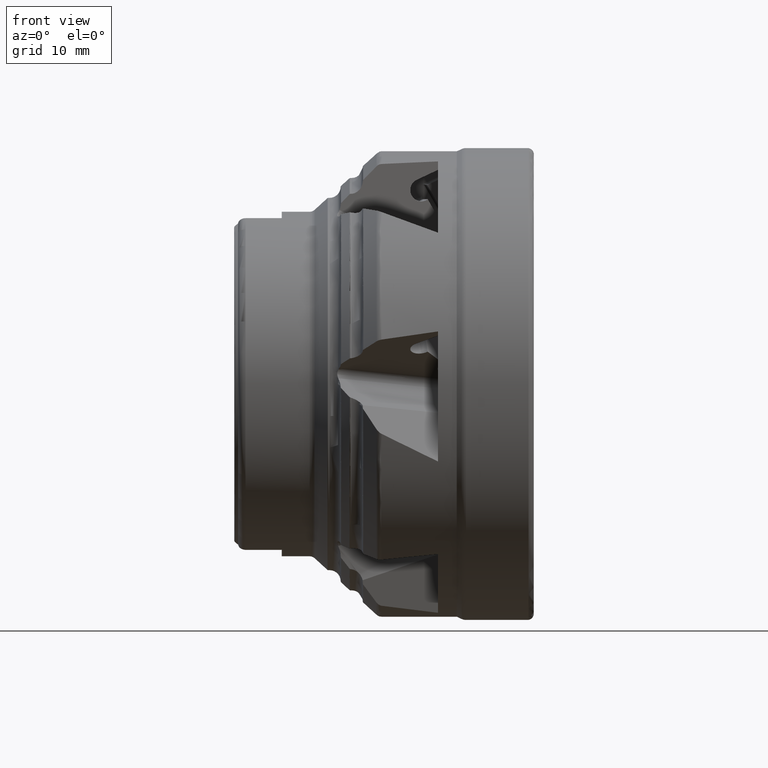
[diagram: clean part render]
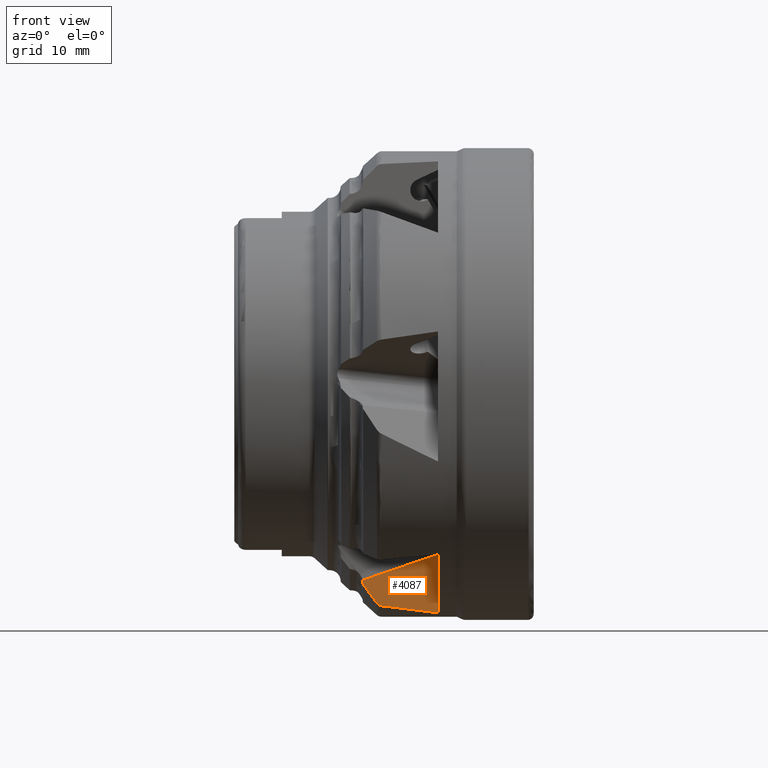
[diagram: same view with one face highlighted and labeled with its STEP entity id]
A machine part, front view. The second image highlights one B-rep face of the part: STEP entity #4087.
In plain terms, the highlighted planar face has unit normal (-0.3841, 0.8611, 0.3332).
Its self-contained STEP definition (entity closure, byte-faithful):
#45 = EDGE_CURVE ( 'NONE', #3265, #1196, #7581, .T. ) ;
#50 = EDGE_CURVE ( 'NONE', #1196, #1234, #7514, .T. ) ;
#51 = EDGE_CURVE ( 'NONE', #1234, #1321, #7553, .T. ) ;
#829 = EDGE_LOOP ( 'NONE', ( #12328, #12531, #12465, #12455, #12423, #12290, #12335 ) ) ;
#1196 = VERTEX_POINT ( 'NONE', #11294 ) ;
#1234 = VERTEX_POINT ( 'NONE', #11332 ) ;
#1321 = VERTEX_POINT ( 'NONE', #11420 ) ;
#1572 = VERTEX_POINT ( 'NONE', #11450 ) ;
#1845 = VERTEX_POINT ( 'NONE', #11509 ) ;
#1951 =( BOUNDED_CURVE ( )  B_SPLINE_CURVE ( 3, ( #4911, #4920, #4921, #4922 ),
 .UNSPECIFIED., .F., .T. ) 
 B_SPLINE_CURVE_WITH_KNOTS ( ( 4, 4 ),
 ( 4.035656156811368700, 4.159239921606158900 ),
 .UNSPECIFIED. ) 
 CURVE ( )  GEOMETRIC_REPRESENTATION_ITEM ( )  RATIONAL_B_SPLINE_CURVE ( ( 1.000000000000000000, 0.9987276593420491000, 0.9987276593420491000, 1.000000000000000000 ) ) 
 REPRESENTATION_ITEM ( '' )  );
#3265 = VERTEX_POINT ( 'NONE', #11617 ) ;
#3293 = VERTEX_POINT ( 'NONE', #11645 ) ;
#3466 = B_SPLINE_CURVE_WITH_KNOTS ( 'NONE', 3,
 ( #4915, #4917, #4918, #4919 ),
 .UNSPECIFIED., .F., .F.,
 ( 4, 4 ),
 ( 3.355557552788343800E-007, 0.008436232804282222500 ),
 .UNSPECIFIED. ) ;
#3720 = EDGE_CURVE ( 'NONE', #1572, #3293, #5827, .T. ) ;
#3727 = EDGE_CURVE ( 'NONE', #1845, #1572, #3466, .T. ) ;
#3728 = EDGE_CURVE ( 'NONE', #1321, #1845, #1951, .T. ) ;
#3861 = CARTESIAN_POINT ( 'NONE',  ( -19.85774274011047400, -10.44707443558982800, -28.40772401760908400 ) ) ;
#3895 = CARTESIAN_POINT ( 'NONE',  ( -19.25000000000001100, -9.873980761844906700, -29.18815133353436800 ) ) ;
#3929 = CARTESIAN_POINT ( 'NONE',  ( -18.84143736846014100, -9.555665846745503300, -29.53976207258448000 ) ) ;
#3936 = CARTESIAN_POINT ( 'NONE',  ( -20.44796818216653000, -11.01797699142935400, -27.61276257128412600 ) ) ;
#3958 = CARTESIAN_POINT ( 'NONE',  ( -18.57524730281298300, -9.407052444002928800, -29.61693754113983700 ) ) ;
#3969 = CARTESIAN_POINT ( 'NONE',  ( -21.05840347996800000, -11.62751956342676100, -26.74123890157931200 ) ) ;
#3985 = CARTESIAN_POINT ( 'NONE',  ( -21.01705947588652600, -11.58623602252604800, -26.80026608805745900 ) ) ;
#3998 = CARTESIAN_POINT ( 'NONE',  ( -19.16593196299355700, -9.794705672250589900, -29.29610653915991100 ) ) ;
#4010 = CARTESIAN_POINT ( 'NONE',  ( -21.08197280959755200, -11.66615057604326600, -26.66857333409225100 ) ) ;
#4018 = CARTESIAN_POINT ( 'NONE',  ( -21.01705947588652600, -11.58623602252604800, -26.80026608805745900 ) ) ;
#4026 = CARTESIAN_POINT ( 'NONE',  ( -21.08210839350755400, -11.69586353117489000, -26.59193764663142500 ) ) ;
#4039 = CARTESIAN_POINT ( 'NONE',  ( -18.71552401130951200, -9.478400905864576800, -29.59427555181028400 ) ) ;
#4056 = CARTESIAN_POINT ( 'NONE',  ( -19.25000000000001100, -9.873980761844906700, -29.18815133353436800 ) ) ;
#4062 = CARTESIAN_POINT ( 'NONE',  ( -19.06867533963690100, -9.715209000430951000, -29.38942831642334500 ) ) ;
#4087 = ADVANCED_FACE ( 'NONE', ( #5972 ), #5421, .F. ) ;
#4890 = CARTESIAN_POINT ( 'NONE',  ( -27.53668891266576000, -13.87167708729622400, -28.41059410246505100 ) ) ;
#4891 = DIRECTION ( 'NONE',  ( -0.9068635686480308600, -0.2841478062807619200, -0.3112209698024681600 ) ) ;
#4911 = CARTESIAN_POINT ( 'NONE',  ( -18.57524730281298300, -9.407052444002928800, -29.61693754113983700 ) ) ;
#4915 = CARTESIAN_POINT ( 'NONE',  ( -11.04062944478619600, -5.684444302778842900, -30.55065822480106500 ) ) ;
#4917 = CARTESIAN_POINT ( 'NONE',  ( -10.93112514378349300, -6.655774829584231600, -27.91403547299314500 ) ) ;
#4918 = CARTESIAN_POINT ( 'NONE',  ( -10.82584073566400400, -7.628806464875773400, -25.27788169789563700 ) ) ;
#4919 = CARTESIAN_POINT ( 'NONE',  ( -10.72986325296337500, -8.605589875448867300, -22.64276224556124000 ) ) ;
#4920 = CARTESIAN_POINT ( 'NONE',  ( -16.17499009874842700, -8.186217842037754300, -30.00470400450855700 ) ) ;
#4921 = CARTESIAN_POINT ( 'NONE',  ( -13.66025120820491300, -6.943767641724385900, -30.31634074048533000 ) ) ;
#4922 = CARTESIAN_POINT ( 'NONE',  ( -11.04062944478619600, -5.684444302778842900, -30.55065822480106500 ) ) ;
#5421 = PLANE ( 'NONE',  #7385 ) ;
#5457 = CARTESIAN_POINT ( 'NONE',  ( -0.07918574631989830400, -7.382135785612931900, -13.52477725858309100 ) ) ;
#5465 = DIRECTION ( 'NONE',  ( -0.3841370771567606000, 0.8610668186702663500, 0.3331705865446825100 ) ) ;
#5466 = DIRECTION ( 'NONE',  ( -0.9132435598144185200, -0.4074140405748047900, 0.0000000000000000000 ) ) ;
#5827 = LINE ( 'NONE', #4890, #5830 ) ;
#5830 = VECTOR ( 'NONE', #4891, 1000.000000000000000 ) ;
#5972 = FACE_OUTER_BOUND ( 'NONE', #829, .T. ) ;
#7385 = AXIS2_PLACEMENT_3D ( 'NONE', #5457, #5465, #5466 ) ;
#7514 = B_SPLINE_CURVE_WITH_KNOTS ( 'NONE', 3,
 ( #3985, #3936, #3861, #4056 ),
 .UNSPECIFIED., .F., .F.,
 ( 4, 4 ),
 ( 4.016652585076830400E-007, 0.003429149718792870500 ),
 .UNSPECIFIED. ) ;
#7553 = B_SPLINE_CURVE_WITH_KNOTS ( 'NONE', 3,
 ( #3895, #3998, #4062, #3929, #4039, #3958 ),
 .UNSPECIFIED., .F., .F.,
 ( 4, 2, 4 ),
 ( 3.722460189110804700E-007, 0.0004697215594977685700, 0.0009390708729766260700 ),
 .UNSPECIFIED. ) ;
#7581 = B_SPLINE_CURVE_WITH_KNOTS ( 'NONE', 3,
 ( #4026, #4010, #3969, #4018 ),
 .UNSPECIFIED., .F., .F.,
 ( 4, 4 ),
 ( 0.0002012910733163625900, 0.0004483316772008684600 ),
 .UNSPECIFIED. ) ;
#7939 = EDGE_CURVE ( 'NONE', #3293, #3265, #12239, .T. ) ;
#10759 = CARTESIAN_POINT ( 'NONE',  ( -21.11050798975559000, -11.85816008745641300, -26.20523231696979100 ) ) ;
#10796 = CARTESIAN_POINT ( 'NONE',  ( -21.09235665258083300, -11.80100795543144800, -26.33201182452544500 ) ) ;
#10798 = CARTESIAN_POINT ( 'NONE',  ( -21.08234043898235300, -11.74671585414860300, -26.46077927773786000 ) ) ;
#10799 = CARTESIAN_POINT ( 'NONE',  ( -21.08210839350755400, -11.69586353117489000, -26.59193764663142500 ) ) ;
#11294 = CARTESIAN_POINT ( 'NONE',  ( -21.01705947588652600, -11.58623602252604800, -26.80026608805745900 ) ) ;
#11332 = CARTESIAN_POINT ( 'NONE',  ( -19.25000000000001100, -9.873980761844906700, -29.18815133353436800 ) ) ;
#11420 = CARTESIAN_POINT ( 'NONE',  ( -18.57524730281298300, -9.407052444002928800, -29.61693754113983700 ) ) ;
#11450 = CARTESIAN_POINT ( 'NONE',  ( -10.72986325296337500, -8.605589875448867300, -22.64276224556124000 ) ) ;
#11509 = CARTESIAN_POINT ( 'NONE',  ( -11.04062944478619600, -5.684444302778842900, -30.55065822480106500 ) ) ;
#11617 = CARTESIAN_POINT ( 'NONE',  ( -21.08210839350755400, -11.69586353117489000, -26.59193764663142500 ) ) ;
#11645 = CARTESIAN_POINT ( 'NONE',  ( -21.11050798975559000, -11.85816008745641300, -26.20523231696979100 ) ) ;
#12239 = B_SPLINE_CURVE_WITH_KNOTS ( 'NONE', 3,
 ( #10759, #10796, #10798, #10799 ),
 .UNSPECIFIED., .F., .F.,
 ( 4, 4 ),
 ( 0.003195653265047906100, 0.003616286529750417800 ),
 .UNSPECIFIED. ) ;
#12290 = ORIENTED_EDGE ( 'NONE', *, *, #50, .T. ) ;
#12328 = ORIENTED_EDGE ( 'NONE', *, *, #3728, .T. ) ;
#12335 = ORIENTED_EDGE ( 'NONE', *, *, #51, .T. ) ;
#12423 = ORIENTED_EDGE ( 'NONE', *, *, #45, .T. ) ;
#12455 = ORIENTED_EDGE ( 'NONE', *, *, #7939, .T. ) ;
#12465 = ORIENTED_EDGE ( 'NONE', *, *, #3720, .T. ) ;
#12531 = ORIENTED_EDGE ( 'NONE', *, *, #3727, .T. ) ;